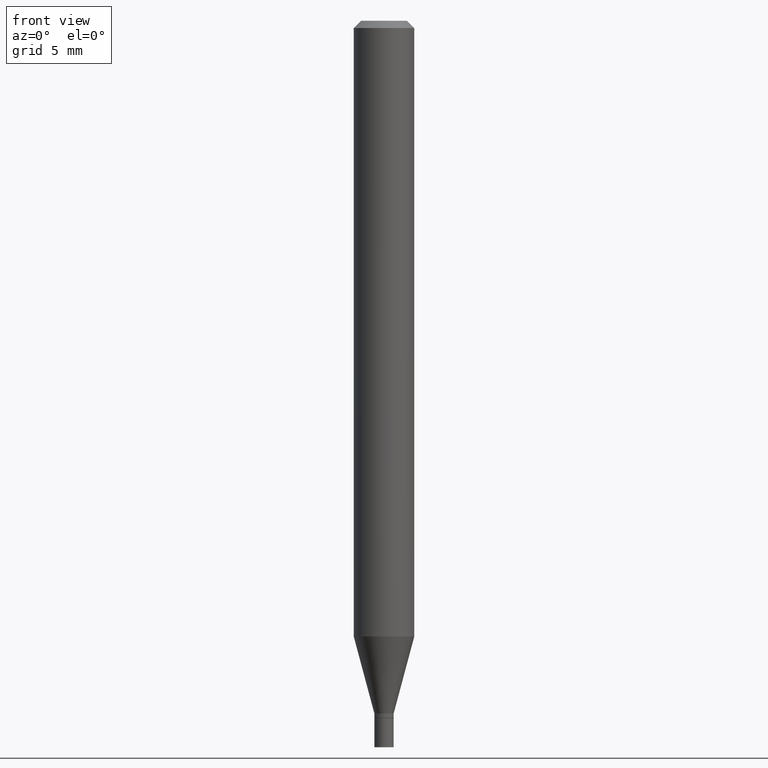
[diagram: clean part render]
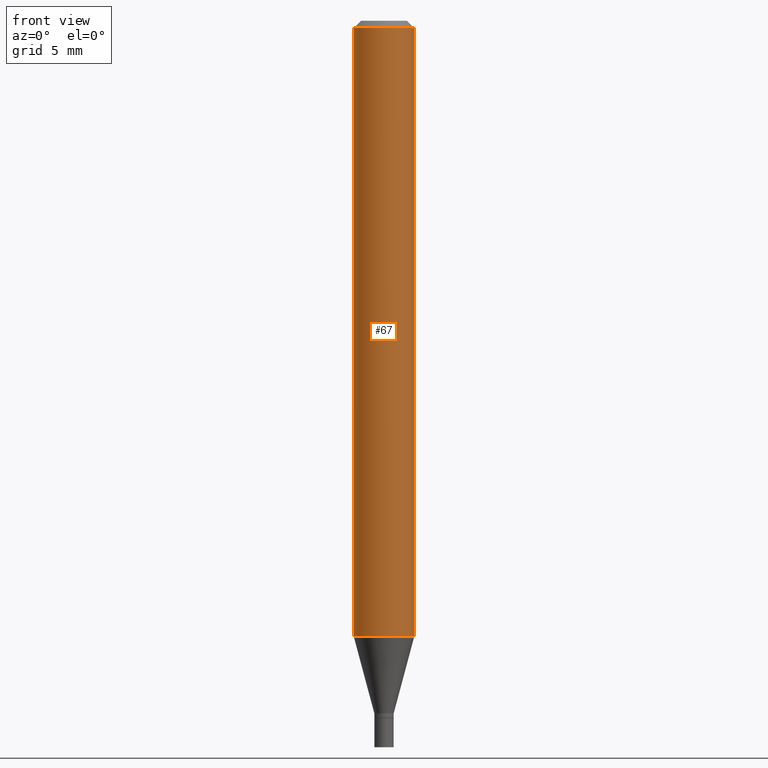
[diagram: same view with one face highlighted and labeled with its STEP entity id]
A machine part, front view. The second image highlights one B-rep face of the part: STEP entity #67.
In plain terms, the highlighted cylindrical surface (edge-blend (fillet) strip) has radius 1.5875 mm, axis along (-0, 0, 1).
Its self-contained STEP definition (entity closure, byte-faithful):
#3 = DIRECTION ( 'NONE',  ( -2.445468806185136877E-29, 3.491481338843145188E-15, 1.000000000000000000 ) ) ;
#7 = CARTESIAN_POINT ( 'NONE',  ( 0.000000000000000000, 0.000000000000000000, 0.000000000000000000 ) ) ;
#13 = CYLINDRICAL_SURFACE ( 'NONE', #336, 0.06250000000000000000 ) ;
#26 = EDGE_CURVE ( 'NONE', #304, #456, #231, .T. ) ;
#31 = CARTESIAN_POINT ( 'NONE',  ( 3.109139304941917248E-29, -4.439026920160447637E-15, -1.271387840678323000 ) ) ;
#56 = CARTESIAN_POINT ( 'NONE',  ( 0.06249999999999999306, -4.875462087515837728E-15, -1.271387840678323000 ) ) ;
#67 = ADVANCED_FACE ( 'NONE', ( #333 ), #13, .T. ) ;
#69 = CARTESIAN_POINT ( 'NONE',  ( -0.06250000000000000000, -1.801610360271484545E-15, -0.01499999999999999944 ) ) ;
#74 = ORIENTED_EDGE ( 'NONE', *, *, #320, .F. ) ;
#98 = DIRECTION ( 'NONE',  ( -2.445468806185136877E-29, 3.491481338843145188E-15, 1.000000000000000000 ) ) ;
#99 = ORIENTED_EDGE ( 'NONE', *, *, #187, .F. ) ;
#151 = DIRECTION ( 'NONE',  ( -2.445468806185136597E-29, 3.491481338843145583E-15, 1.000000000000000000 ) ) ;
#162 = CIRCLE ( 'NONE', #220, 0.06250000000000000000 ) ;
#172 = ORIENTED_EDGE ( 'NONE', *, *, #26, .T. ) ;
#176 = DIRECTION ( 'NONE',  ( 1.000000000000000000, -6.982962677686262766E-15, 0.000000000000000000 ) ) ;
#177 = DIRECTION ( 'NONE',  ( 1.000000000000000000, -6.982962677686266711E-15, 4.876176775795935793E-29 ) ) ;
#179 = CARTESIAN_POINT ( 'NONE',  ( -0.06249999999999999306, -3.994937710310384232E-15, -1.271387840678323000 ) ) ;
#187 = EDGE_CURVE ( 'NONE', #452, #433, #252, .T. ) ;
#212 = EDGE_LOOP ( 'NONE', ( #99, #303, #172, #74 ) ) ;
#220 = AXIS2_PLACEMENT_3D ( 'NONE', #385, #412, #348 ) ;
#231 = LINE ( 'NONE', #384, #272 ) ;
#251 = CARTESIAN_POINT ( 'NONE',  ( 0.06250000000000000000, -4.888073874380388472E-16, -0.01499999999999999944 ) ) ;
#252 = LINE ( 'NONE', #405, #438 ) ;
#272 = VECTOR ( 'NONE', #98, 39.37007874015748143 ) ;
#303 = ORIENTED_EDGE ( 'NONE', *, *, #330, .T. ) ;
#304 = VERTEX_POINT ( 'NONE', #56 ) ;
#320 = EDGE_CURVE ( 'NONE', #433, #456, #162, .T. ) ;
#330 = EDGE_CURVE ( 'NONE', #452, #304, #461, .T. ) ;
#333 = FACE_OUTER_BOUND ( 'NONE', #212, .T. ) ;
#336 = AXIS2_PLACEMENT_3D ( 'NONE', #7, #151, #177 ) ;
#348 = DIRECTION ( 'NONE',  ( 1.000000000000000000, -6.982962677686266711E-15, 0.000000000000000000 ) ) ;
#353 = AXIS2_PLACEMENT_3D ( 'NONE', #31, #407, #176 ) ;
#384 = CARTESIAN_POINT ( 'NONE',  ( 0.06250000000000000000, -4.364351673553916694E-16, 3.047610484872459871E-30 ) ) ;
#385 = CARTESIAN_POINT ( 'NONE',  ( 3.668203209277705088E-31, -5.237222008264718399E-17, -0.01499999999999999944 ) ) ;
#405 = CARTESIAN_POINT ( 'NONE',  ( -0.06250000000000000000, 4.440892098500626162E-16, -3.074334431409316114E-30 ) ) ;
#407 = DIRECTION ( 'NONE',  ( -2.445468806185136597E-29, 3.491481338843145583E-15, 1.000000000000000000 ) ) ;
#412 = DIRECTION ( 'NONE',  ( -2.445468806185136597E-29, 3.491481338843145583E-15, 1.000000000000000000 ) ) ;
#433 = VERTEX_POINT ( 'NONE', #69 ) ;
#438 = VECTOR ( 'NONE', #3, 39.37007874015748143 ) ;
#452 = VERTEX_POINT ( 'NONE', #179 ) ;
#456 = VERTEX_POINT ( 'NONE', #251 ) ;
#461 = CIRCLE ( 'NONE', #353, 0.06250000000000000000 ) ;